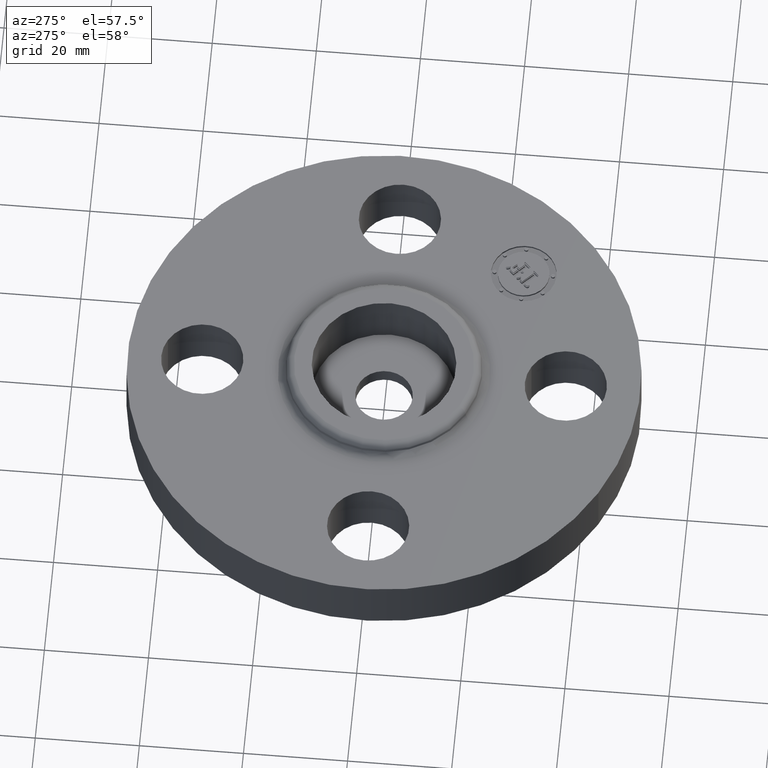
[diagram: clean part render]
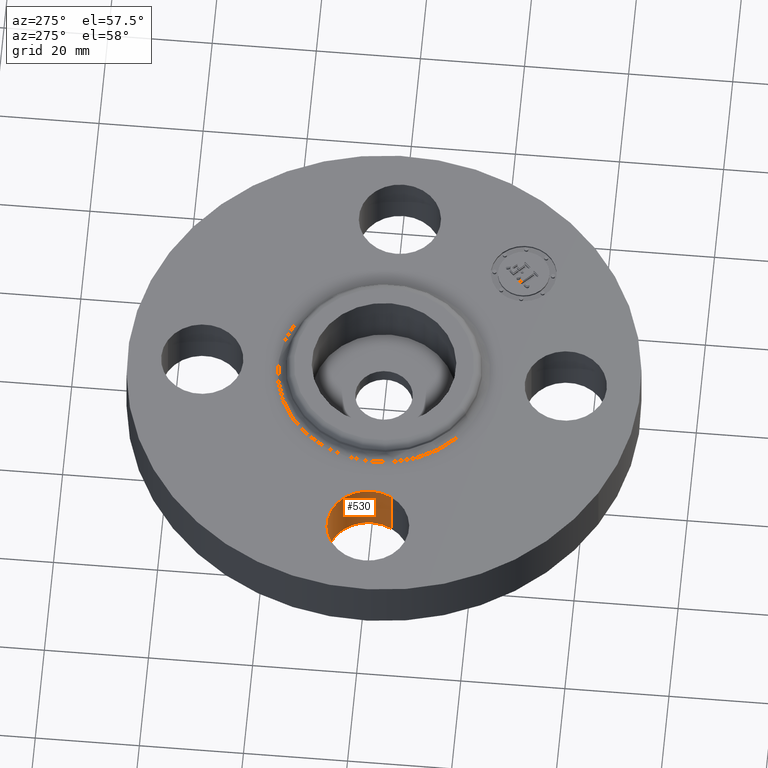
[diagram: same view with one face highlighted and labeled with its STEP entity id]
A machine part, auxiliary view. The second image highlights one B-rep face of the part: STEP entity #530.
In plain terms, the highlighted cylindrical surface (partial cylindrical patch) has radius 7.874 mm, axis along (-0, 0, -1).
Its self-contained STEP definition (entity closure, byte-faithful):
#217=AXIS2_PLACEMENT_3D('Circle Axis2P3D',#215,#216,$) ;
#503=AXIS2_PLACEMENT_3D('Cylinder Axis2P3D',#500,#501,#502) ;
#521=AXIS2_PLACEMENT_3D('Circle Axis2P3D',#519,#520,$) ;
#210=CARTESIAN_POINT('Vertex',(-1.10294940582,-0.148621916968,0.)) ;
#212=CARTESIAN_POINT('Vertex',(-1.64705059419,0.148621916968,0.)) ;
#215=CARTESIAN_POINT('Axis2P3D Location',(-1.37500000001,-2.09805925913E-016,0.)) ;
#500=CARTESIAN_POINT('Axis2P3D Location',(-1.37500000001,-1.68388934883E-016,0.436062992128)) ;
#505=CARTESIAN_POINT('Line Origine',(-1.64705059419,0.148621916968,0.220000000001)) ;
#509=CARTESIAN_POINT('Vertex',(-1.64705059419,0.148621916968,0.440000000002)) ;
#512=CARTESIAN_POINT('Line Origine',(-1.10294940582,-0.148621916968,0.220000000001)) ;
#516=CARTESIAN_POINT('Vertex',(-1.10294940582,-0.148621916968,0.440000000002)) ;
#519=CARTESIAN_POINT('Axis2P3D Location',(-1.37500000001,-1.68388934883E-016,0.440000000002)) ;
#216=DIRECTION('Axis2P3D Direction',(0.,0.,-0.0393700787402)) ;
#501=DIRECTION('Axis2P3D Direction',(-0.,0.,-0.0393700787402)) ;
#502=DIRECTION('Axis2P3D XDirection',(0.0345504945626,-0.0188750212049,-0.)) ;
#506=DIRECTION('Vector Direction',(0.,0.,-0.0393700787402)) ;
#513=DIRECTION('Vector Direction',(0.,0.,-0.0393700787402)) ;
#520=DIRECTION('Axis2P3D Direction',(-0.,0.,-0.0393700787402)) ;
#507=VECTOR('Line Direction',#506,0.0393700787402) ;
#514=VECTOR('Line Direction',#513,0.0393700787402) ;
#525=ORIENTED_EDGE('',*,*,#511,.F.) ;
#526=ORIENTED_EDGE('',*,*,#219,.T.) ;
#527=ORIENTED_EDGE('',*,*,#518,.T.) ;
#528=ORIENTED_EDGE('',*,*,#523,.F.) ;
#530=ADVANCED_FACE('PartBody',(#529),#504,.F.) ;
#218=CIRCLE('generated circle',#217,0.310000000001) ;
#522=CIRCLE('generated circle',#521,0.310000000001) ;
#504=CYLINDRICAL_SURFACE('generated cylinder',#503,0.310000000001) ;
#219=EDGE_CURVE('',#213,#211,#218,.T.) ;
#511=EDGE_CURVE('',#213,#510,#508,.F.) ;
#518=EDGE_CURVE('',#211,#517,#515,.F.) ;
#523=EDGE_CURVE('',#510,#517,#522,.T.) ;
#524=EDGE_LOOP('',(#525,#526,#527,#528)) ;
#529=FACE_OUTER_BOUND('',#524,.T.) ;
#508=LINE('Line',#505,#507) ;
#515=LINE('Line',#512,#514) ;
#211=VERTEX_POINT('',#210) ;
#213=VERTEX_POINT('',#212) ;
#510=VERTEX_POINT('',#509) ;
#517=VERTEX_POINT('',#516) ;